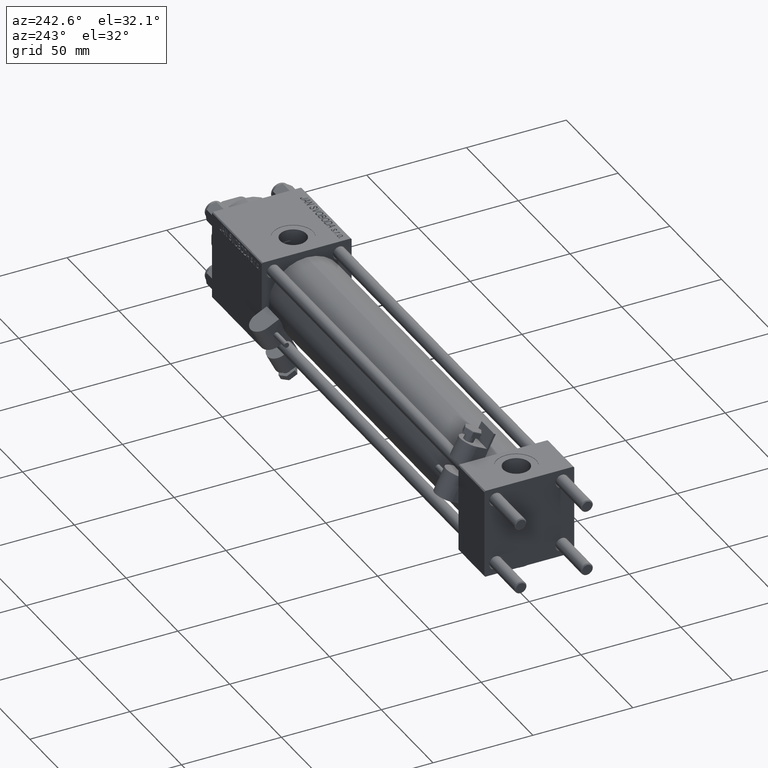
[diagram: clean part render]
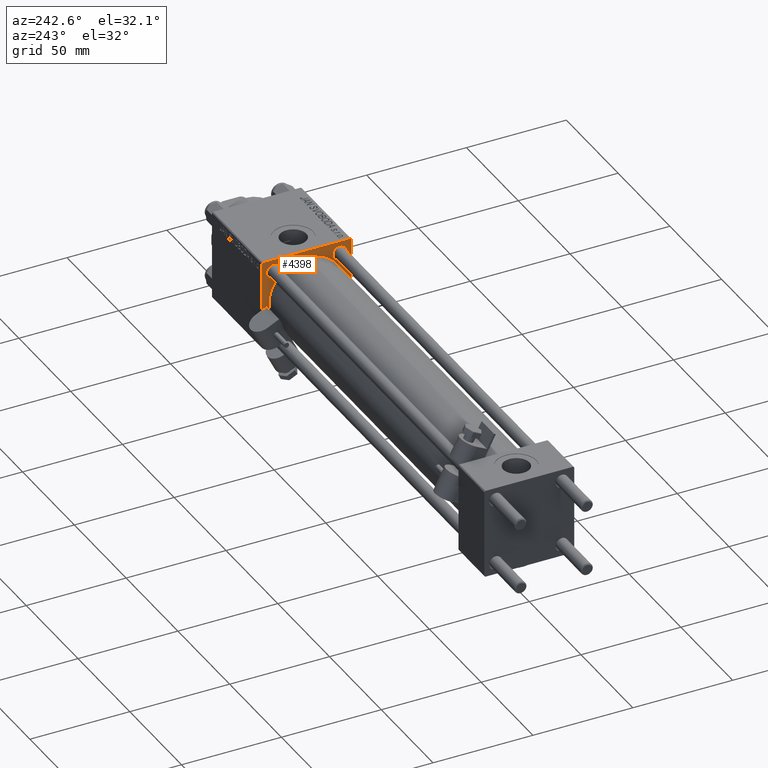
[diagram: same view with one face highlighted and labeled with its STEP entity id]
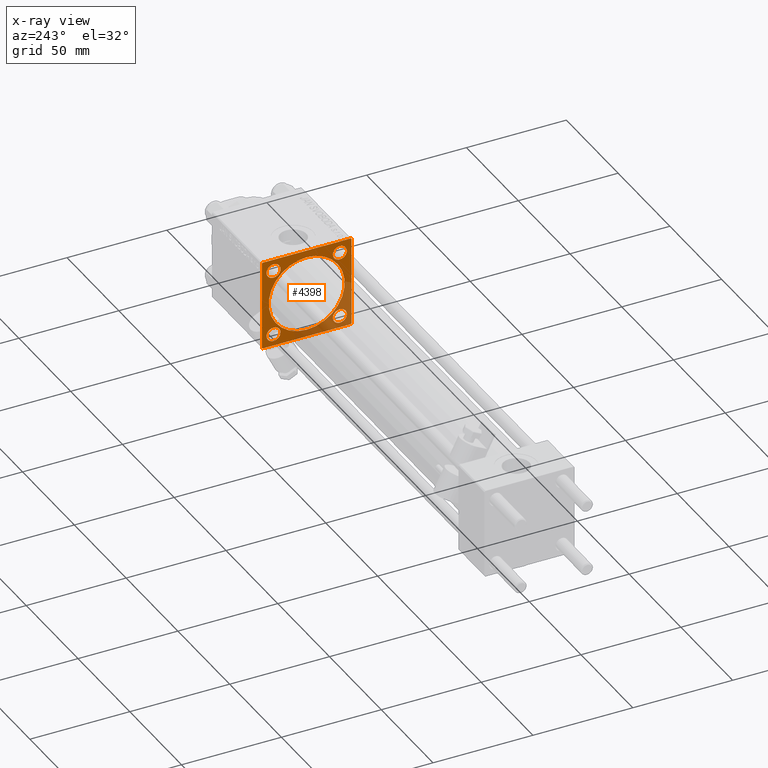
[diagram: x-ray of the same camera — body ghosted, the highlighted face saturated]
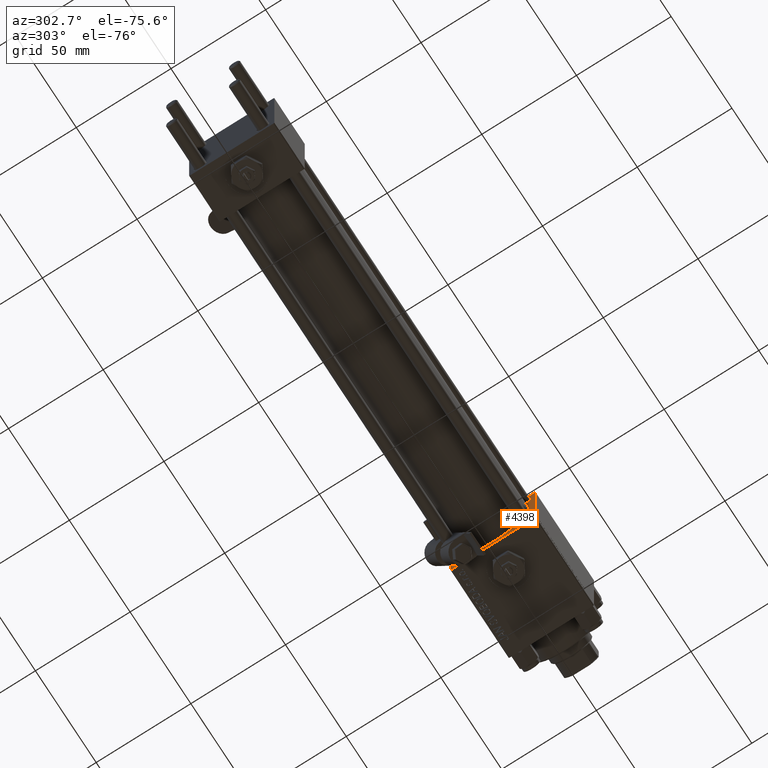
[diagram: same view with one face highlighted and labeled with its STEP entity id]
A machine part, auxiliary view. The second image highlights one B-rep face of the part: STEP entity #4398.
The next image is the same camera in x-ray: the body ghosted, the highlighted face saturated — about 28% of this face is hidden behind the body in this view.
A second angle (auxiliary view) of the same face is appended — the face is thin or edge-on in the first view.
In plain terms, the highlighted planar face has unit normal (-1, 0, 0).
Its self-contained STEP definition (entity closure, byte-faithful):
#56 = CARTESIAN_POINT ( 'NONE',  ( 215.0000000000000000, -16.59999999999999076, 20.09999999999992681 ) ) ;
#194 = CARTESIAN_POINT ( 'NONE',  ( 215.0000000000000000, -21.99999999999992539, -22.50000000000000000 ) ) ;
#829 = AXIS2_PLACEMENT_3D ( 'NONE', #42799, #14674, #7170 ) ;
#878 = AXIS2_PLACEMENT_3D ( 'NONE', #16641, #36976, #32945 ) ;
#1206 = EDGE_CURVE ( 'NONE', #39330, #8310, #22014, .T. ) ;
#3292 = DIRECTION ( 'NONE',  ( -0.000000000000000000, -0.7071067811865474617, -0.7071067811865474617 ) ) ;
#3359 = FACE_BOUND ( 'NONE', #45794, .T. ) ;
#3476 = CARTESIAN_POINT ( 'NONE',  ( 215.0000000000000000, 22.50000000000000355, -21.99999999999992539 ) ) ;
#4089 = CARTESIAN_POINT ( 'NONE',  ( 215.0000000000000000, 22.24999999999996803, -22.24999999999996803 ) ) ;
#4136 = ORIENTED_EDGE ( 'NONE', *, *, #35215, .T. ) ;
#4197 = CIRCLE ( 'NONE', #25589, 3.499999999999920064 ) ;
#4317 = EDGE_CURVE ( 'NONE', #8965, #31070, #17589, .T. ) ;
#4398 = ADVANCED_FACE ( 'NONE', ( #40006, #32244, #48844, #3359, #48315, #36527 ), #48580, .T. ) ;
#4435 = DIRECTION ( 'NONE',  ( 0.000000000000000000, 0.000000000000000000, 1.000000000000000000 ) ) ;
#4562 = VERTEX_POINT ( 'NONE', #30595 ) ;
#4654 = EDGE_CURVE ( 'NONE', #23421, #37995, #41003, .T. ) ;
#4888 = ORIENTED_EDGE ( 'NONE', *, *, #4317, .T. ) ;
#5390 = CARTESIAN_POINT ( 'NONE',  ( 215.0000000000000000, 16.59999999999999787, 20.09999999999992326 ) ) ;
#5469 = CARTESIAN_POINT ( 'NONE',  ( 215.0000000000000000, 16.59999999999999787, -13.10000000000002807 ) ) ;
#5968 = VECTOR ( 'NONE', #28248, 1000.000000000000000 ) ;
#5998 = VERTEX_POINT ( 'NONE', #14946 ) ;
#6159 = ORIENTED_EDGE ( 'NONE', *, *, #44669, .T. ) ;
#7095 = DIRECTION ( 'NONE',  ( 0.000000000000000000, 0.000000000000000000, 1.000000000000000000 ) ) ;
#7170 = DIRECTION ( 'NONE',  ( 0.000000000000000000, 0.000000000000000000, 1.000000000000000000 ) ) ;
#7173 = VERTEX_POINT ( 'NONE', #14228 ) ;
#7172 = LINE ( 'NONE', #27509, #29902 ) ;
#7330 = CIRCLE ( 'NONE', #9055, 3.499999999999975131 ) ;
#8144 = DIRECTION ( 'NONE',  ( 0.000000000000000000, 0.000000000000000000, 1.000000000000000000 ) ) ;
#8166 = DIRECTION ( 'NONE',  ( -1.000000000000000000, 0.000000000000000000, -0.000000000000000000 ) ) ;
#8310 = VERTEX_POINT ( 'NONE', #13721 ) ;
#8508 = VERTEX_POINT ( 'NONE', #51439 ) ;
#8965 = VERTEX_POINT ( 'NONE', #11083 ) ;
#9055 = AXIS2_PLACEMENT_3D ( 'NONE', #12055, #27564, #24091 ) ;
#9321 = CIRCLE ( 'NONE', #37610, 3.499999999999975131 ) ;
#10242 = CIRCLE ( 'NONE', #829, 3.499999999999920064 ) ;
#10347 = EDGE_CURVE ( 'NONE', #5998, #45419, #39139, .T. ) ;
#11083 = CARTESIAN_POINT ( 'NONE',  ( 215.0000000000000000, 2.326828918379970970E-15, -19.00000000000000000 ) ) ;
#11102 = VECTOR ( 'NONE', #23163, 1000.000000000000000 ) ;
#11881 = CIRCLE ( 'NONE', #878, 19.00000000000000000 ) ;
#11892 = AXIS2_PLACEMENT_3D ( 'NONE', #45369, #16747, #4435 ) ;
#12055 = CARTESIAN_POINT ( 'NONE',  ( 215.0000000000000000, -16.59999999999999076, -16.60000000000000853 ) ) ;
#12402 = EDGE_CURVE ( 'NONE', #23083, #4562, #34936, .T. ) ;
#12536 = ORIENTED_EDGE ( 'NONE', *, *, #10347, .T. ) ;
#13087 = CARTESIAN_POINT ( 'NONE',  ( 215.0000000000000000, -16.59999999999999076, -16.60000000000000853 ) ) ;
#13597 = AXIS2_PLACEMENT_3D ( 'NONE', #30643, #38430, #34139 ) ;
#13721 = CARTESIAN_POINT ( 'NONE',  ( 215.0000000000000000, -22.49999999999999645, -21.99999999999992184 ) ) ;
#13953 = CARTESIAN_POINT ( 'NONE',  ( 215.0000000000000000, -22.49999999999999645, 21.99999999999999289 ) ) ;
#14228 = CARTESIAN_POINT ( 'NONE',  ( 215.0000000000000000, 21.99999999999997513, 22.50000000000000355 ) ) ;
#14674 = DIRECTION ( 'NONE',  ( 1.000000000000000000, -0.000000000000000000, 0.000000000000000000 ) ) ;
#14946 = CARTESIAN_POINT ( 'NONE',  ( 215.0000000000000000, -16.59999999999999076, -13.10000000000003162 ) ) ;
#16205 = DIRECTION ( 'NONE',  ( 1.000000000000000000, 0.000000000000000000, 0.000000000000000000 ) ) ;
#16443 = EDGE_CURVE ( 'NONE', #4562, #23083, #4197, .T. ) ;
#16608 = ORIENTED_EDGE ( 'NONE', *, *, #48720, .T. ) ;
#16641 = CARTESIAN_POINT ( 'NONE',  ( 215.0000000000000000, 0.000000000000000000, 0.000000000000000000 ) ) ;
#16658 = ORIENTED_EDGE ( 'NONE', *, *, #12402, .T. ) ;
#16747 = DIRECTION ( 'NONE',  ( 1.000000000000000000, -0.000000000000000000, 0.000000000000000000 ) ) ;
#17376 = CARTESIAN_POINT ( 'NONE',  ( 215.0000000000000000, 21.99999999999994671, -22.49999999999999645 ) ) ;
#17589 = CIRCLE ( 'NONE', #26134, 19.00000000000000000 ) ;
#18513 = CARTESIAN_POINT ( 'NONE',  ( 215.0000000000000000, -22.49999999999999645, 22.49999999999999289 ) ) ;
#19394 = DIRECTION ( 'NONE',  ( -0.000000000000000000, 0.7071067811865672237, 0.7071067811865279218 ) ) ;
#19536 = DIRECTION ( 'NONE',  ( 0.000000000000000000, -0.7071067811865426878, 0.7071067811865524577 ) ) ;
#19808 = CARTESIAN_POINT ( 'NONE',  ( 215.0000000000000000, -22.25000000000012079, -22.24999999999981171 ) ) ;
#20068 = DIRECTION ( 'NONE',  ( 0.000000000000000000, 0.000000000000000000, 1.000000000000000000 ) ) ;
#20213 = CARTESIAN_POINT ( 'NONE',  ( 215.0000000000000000, 0.000000000000000000, 0.000000000000000000 ) ) ;
#20480 = DIRECTION ( 'NONE',  ( -0.000000000000000000, 0.000000000000000000, 1.000000000000000000 ) ) ;
#20589 = DIRECTION ( 'NONE',  ( 1.000000000000000000, -0.000000000000000000, 0.000000000000000000 ) ) ;
#20601 = DIRECTION ( 'NONE',  ( 1.000000000000000000, -0.000000000000000000, 0.000000000000000000 ) ) ;
#20813 = ORIENTED_EDGE ( 'NONE', *, *, #1206, .F. ) ;
#21491 = DIRECTION ( 'NONE',  ( 0.000000000000000000, 0.000000000000000000, -1.000000000000000000 ) ) ;
#22014 = LINE ( 'NONE', #18513, #32010 ) ;
#22222 = VERTEX_POINT ( 'NONE', #5390 ) ;
#22709 = EDGE_LOOP ( 'NONE', ( #50922, #4888 ) ) ;
#22826 = AXIS2_PLACEMENT_3D ( 'NONE', #35181, #31423, #7095 ) ;
#22842 = ORIENTED_EDGE ( 'NONE', *, *, #16443, .T. ) ;
#23083 = VERTEX_POINT ( 'NONE', #56 ) ;
#23163 = DIRECTION ( 'NONE',  ( 0.000000000000000000, 0.7071067811865672237, -0.7071067811865279218 ) ) ;
#23412 = LINE ( 'NONE', #39721, #27098 ) ;
#23421 = VERTEX_POINT ( 'NONE', #3476 ) ;
#23428 = LINE ( 'NONE', #39211, #11102 ) ;
#24032 = DIRECTION ( 'NONE',  ( 0.000000000000000000, -1.000000000000000000, -2.312964634635742957E-16 ) ) ;
#24056 = ORIENTED_EDGE ( 'NONE', *, *, #43013, .T. ) ;
#24091 = DIRECTION ( 'NONE',  ( 0.000000000000000000, 0.000000000000000000, 1.000000000000000000 ) ) ;
#25257 = DIRECTION ( 'NONE',  ( 1.000000000000000000, -0.000000000000000000, 0.000000000000000000 ) ) ;
#25359 = VERTEX_POINT ( 'NONE', #50500 ) ;
#25589 = AXIS2_PLACEMENT_3D ( 'NONE', #45064, #25257, #8144 ) ;
#26134 = AXIS2_PLACEMENT_3D ( 'NONE', #44310, #16205, #36263 ) ;
#26315 = CARTESIAN_POINT ( 'NONE',  ( 215.0000000000000000, -16.59999999999999076, -20.09999999999998366 ) ) ;
#27098 = VECTOR ( 'NONE', #19394, 1000.000000000000000 ) ;
#27509 = CARTESIAN_POINT ( 'NONE',  ( 215.0000000000000000, 22.50000000000000355, 22.50000000000000355 ) ) ;
#27524 = VERTEX_POINT ( 'NONE', #38636 ) ;
#27564 = DIRECTION ( 'NONE',  ( 1.000000000000000000, -0.000000000000000000, 0.000000000000000000 ) ) ;
#28248 = DIRECTION ( 'NONE',  ( 0.000000000000000000, -1.000000000000000000, -7.709882115452476934E-17 ) ) ;
#28972 = LINE ( 'NONE', #49845, #34170 ) ;
#29818 = CIRCLE ( 'NONE', #13597, 3.499999999999975131 ) ;
#29902 = VECTOR ( 'NONE', #24032, 1000.000000000000000 ) ;
#30595 = CARTESIAN_POINT ( 'NONE',  ( 215.0000000000000000, -16.59999999999999076, 13.10000000000008669 ) ) ;
#30643 = CARTESIAN_POINT ( 'NONE',  ( 215.0000000000000000, 16.59999999999999787, -16.60000000000000497 ) ) ;
#31070 = VERTEX_POINT ( 'NONE', #47073 ) ;
#31423 = DIRECTION ( 'NONE',  ( 1.000000000000000000, -0.000000000000000000, 0.000000000000000000 ) ) ;
#31509 = ORIENTED_EDGE ( 'NONE', *, *, #47141, .F. ) ;
#31873 = EDGE_LOOP ( 'NONE', ( #38003, #24056 ) ) ;
#32010 = VECTOR ( 'NONE', #39361, 1000.000000000000000 ) ;
#32244 = FACE_BOUND ( 'NONE', #31873, .T. ) ;
#32247 = LINE ( 'NONE', #48583, #5968 ) ;
#32489 = VECTOR ( 'NONE', #19536, 1000.000000000000000 ) ;
#32945 = DIRECTION ( 'NONE',  ( 0.000000000000000000, 0.000000000000000000, -1.000000000000000000 ) ) ;
#32958 = AXIS2_PLACEMENT_3D ( 'NONE', #20213, #8166, #20480 ) ;
#33407 = DIRECTION ( 'NONE',  ( 0.000000000000000000, 0.000000000000000000, 1.000000000000000000 ) ) ;
#33976 = EDGE_LOOP ( 'NONE', ( #39892, #34236, #20813, #45181, #31509, #35191, #6159, #48567 ) ) ;
#34139 = DIRECTION ( 'NONE',  ( 0.000000000000000000, 0.000000000000000000, 1.000000000000000000 ) ) ;
#34170 = VECTOR ( 'NONE', #21491, 1000.000000000000000 ) ;
#34236 = ORIENTED_EDGE ( 'NONE', *, *, #45808, .T. ) ;
#34550 = CARTESIAN_POINT ( 'NONE',  ( 215.0000000000000000, 16.59999999999999787, -20.09999999999998010 ) ) ;
#34936 = CIRCLE ( 'NONE', #11892, 3.499999999999920064 ) ;
#35181 = CARTESIAN_POINT ( 'NONE',  ( 215.0000000000000000, 16.59999999999999787, 16.60000000000000497 ) ) ;
#35191 = ORIENTED_EDGE ( 'NONE', *, *, #50152, .T. ) ;
#35215 = EDGE_CURVE ( 'NONE', #45419, #5998, #7330, .T. ) ;
#35680 = VERTEX_POINT ( 'NONE', #194 ) ;
#35706 = AXIS2_PLACEMENT_3D ( 'NONE', #13087, #20589, #33407 ) ;
#36263 = DIRECTION ( 'NONE',  ( 0.000000000000000000, 0.000000000000000000, -1.000000000000000000 ) ) ;
#36527 = FACE_OUTER_BOUND ( 'NONE', #33976, .T. ) ;
#36976 = DIRECTION ( 'NONE',  ( 1.000000000000000000, 0.000000000000000000, 0.000000000000000000 ) ) ;
#37610 = AXIS2_PLACEMENT_3D ( 'NONE', #49489, #20601, #20068 ) ;
#37995 = VERTEX_POINT ( 'NONE', #17376 ) ;
#38003 = ORIENTED_EDGE ( 'NONE', *, *, #38484, .T. ) ;
#38225 = CIRCLE ( 'NONE', #22826, 3.499999999999920064 ) ;
#38430 = DIRECTION ( 'NONE',  ( 1.000000000000000000, -0.000000000000000000, 0.000000000000000000 ) ) ;
#38484 = EDGE_CURVE ( 'NONE', #22222, #25359, #38225, .T. ) ;
#38492 = EDGE_CURVE ( 'NONE', #39330, #27524, #23412, .T. ) ;
#38636 = CARTESIAN_POINT ( 'NONE',  ( 215.0000000000000000, -21.99999999999995381, 22.49999999999999289 ) ) ;
#39139 = CIRCLE ( 'NONE', #35706, 3.499999999999975131 ) ;
#39211 = CARTESIAN_POINT ( 'NONE',  ( 215.0000000000000000, 22.24999999999937828, 22.25000000000061462 ) ) ;
#39330 = VERTEX_POINT ( 'NONE', #13953 ) ;
#39361 = DIRECTION ( 'NONE',  ( 0.000000000000000000, 0.000000000000000000, -1.000000000000000000 ) ) ;
#39721 = CARTESIAN_POINT ( 'NONE',  ( 215.0000000000000000, -22.24999999999936762, 22.25000000000060751 ) ) ;
#39892 = ORIENTED_EDGE ( 'NONE', *, *, #50396, .T. ) ;
#40006 = FACE_BOUND ( 'NONE', #45144, .T. ) ;
#41003 = LINE ( 'NONE', #4089, #50092 ) ;
#42300 = EDGE_CURVE ( 'NONE', #43465, #48376, #29818, .T. ) ;
#42799 = CARTESIAN_POINT ( 'NONE',  ( 215.0000000000000000, 16.59999999999999787, 16.60000000000000497 ) ) ;
#43013 = EDGE_CURVE ( 'NONE', #25359, #22222, #10242, .T. ) ;
#43465 = VERTEX_POINT ( 'NONE', #34550 ) ;
#44310 = CARTESIAN_POINT ( 'NONE',  ( 215.0000000000000000, 0.000000000000000000, 0.000000000000000000 ) ) ;
#44669 = EDGE_CURVE ( 'NONE', #8508, #23421, #28972, .T. ) ;
#45064 = CARTESIAN_POINT ( 'NONE',  ( 215.0000000000000000, -16.59999999999999076, 16.60000000000000853 ) ) ;
#45144 = EDGE_LOOP ( 'NONE', ( #16658, #22842 ) ) ;
#45181 = ORIENTED_EDGE ( 'NONE', *, *, #38492, .T. ) ;
#45369 = CARTESIAN_POINT ( 'NONE',  ( 215.0000000000000000, -16.59999999999999076, 16.60000000000000853 ) ) ;
#45419 = VERTEX_POINT ( 'NONE', #26315 ) ;
#45794 = EDGE_LOOP ( 'NONE', ( #12536, #4136 ) ) ;
#45808 = EDGE_CURVE ( 'NONE', #35680, #8310, #48442, .T. ) ;
#46148 = EDGE_LOOP ( 'NONE', ( #16608, #51163 ) ) ;
#47073 = CARTESIAN_POINT ( 'NONE',  ( 215.0000000000000000, 0.000000000000000000, 19.00000000000000000 ) ) ;
#47141 = EDGE_CURVE ( 'NONE', #7173, #27524, #7172, .T. ) ;
#48315 = FACE_BOUND ( 'NONE', #22709, .T. ) ;
#48376 = VERTEX_POINT ( 'NONE', #5469 ) ;
#48442 = LINE ( 'NONE', #19808, #32489 ) ;
#48524 = EDGE_CURVE ( 'NONE', #31070, #8965, #11881, .T. ) ;
#48567 = ORIENTED_EDGE ( 'NONE', *, *, #4654, .T. ) ;
#48580 = PLANE ( 'NONE',  #32958 ) ;
#48583 = CARTESIAN_POINT ( 'NONE',  ( 215.0000000000000000, 22.50000000000000355, -22.49999999999999645 ) ) ;
#48720 = EDGE_CURVE ( 'NONE', #48376, #43465, #9321, .T. ) ;
#48844 = FACE_BOUND ( 'NONE', #46148, .T. ) ;
#49489 = CARTESIAN_POINT ( 'NONE',  ( 215.0000000000000000, 16.59999999999999787, -16.60000000000000497 ) ) ;
#49845 = CARTESIAN_POINT ( 'NONE',  ( 215.0000000000000000, 22.50000000000000355, 22.50000000000000355 ) ) ;
#50092 = VECTOR ( 'NONE', #3292, 1000.000000000000114 ) ;
#50152 = EDGE_CURVE ( 'NONE', #7173, #8508, #23428, .T. ) ;
#50396 = EDGE_CURVE ( 'NONE', #37995, #35680, #32247, .T. ) ;
#50500 = CARTESIAN_POINT ( 'NONE',  ( 215.0000000000000000, 16.59999999999999787, 13.10000000000008313 ) ) ;
#50922 = ORIENTED_EDGE ( 'NONE', *, *, #48524, .T. ) ;
#51163 = ORIENTED_EDGE ( 'NONE', *, *, #42300, .T. ) ;
#51439 = CARTESIAN_POINT ( 'NONE',  ( 215.0000000000000000, 22.50000000000000355, 22.00000000000000355 ) ) ;